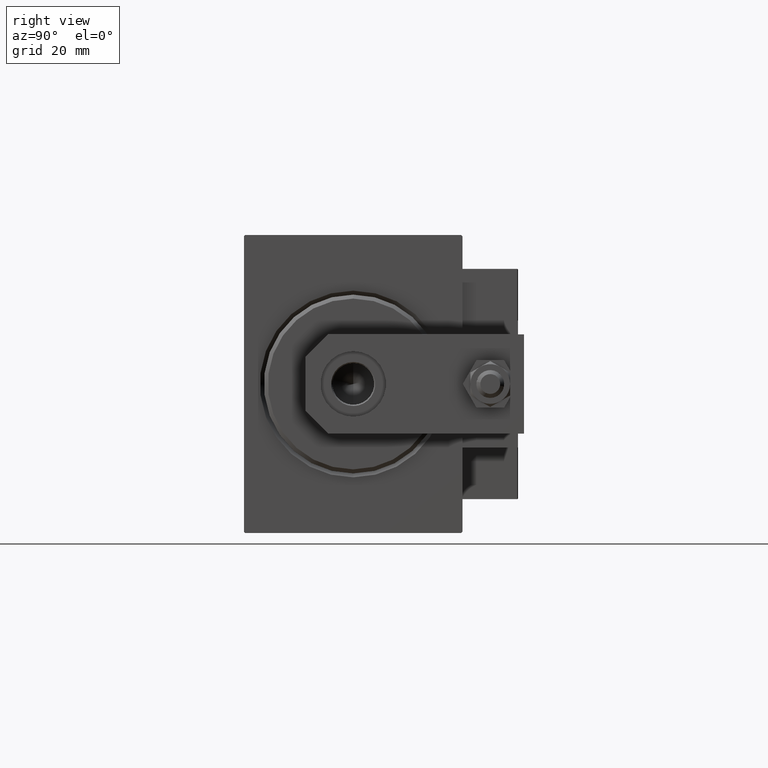
[diagram: clean part render]
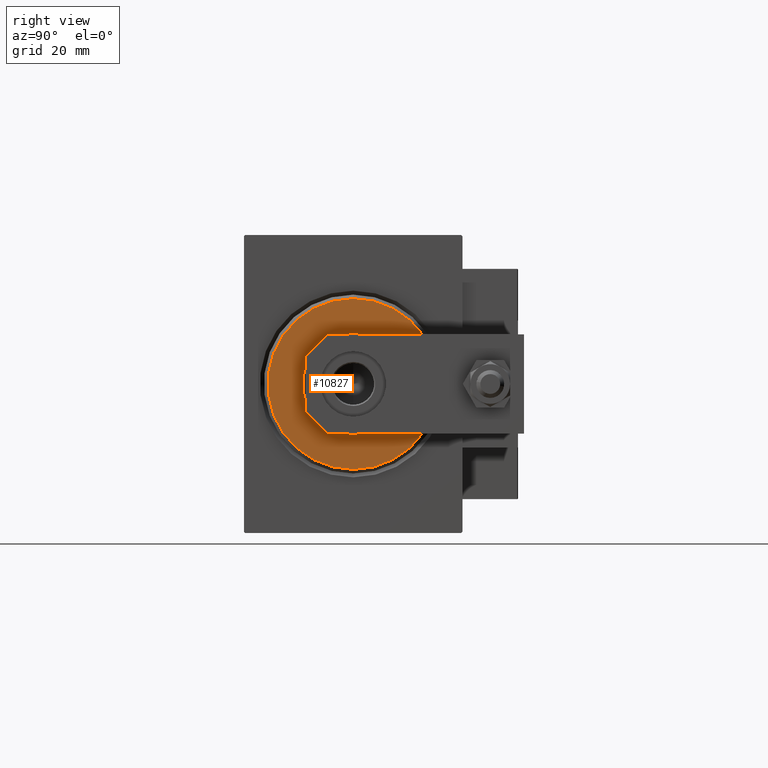
[diagram: same view with one face highlighted and labeled with its STEP entity id]
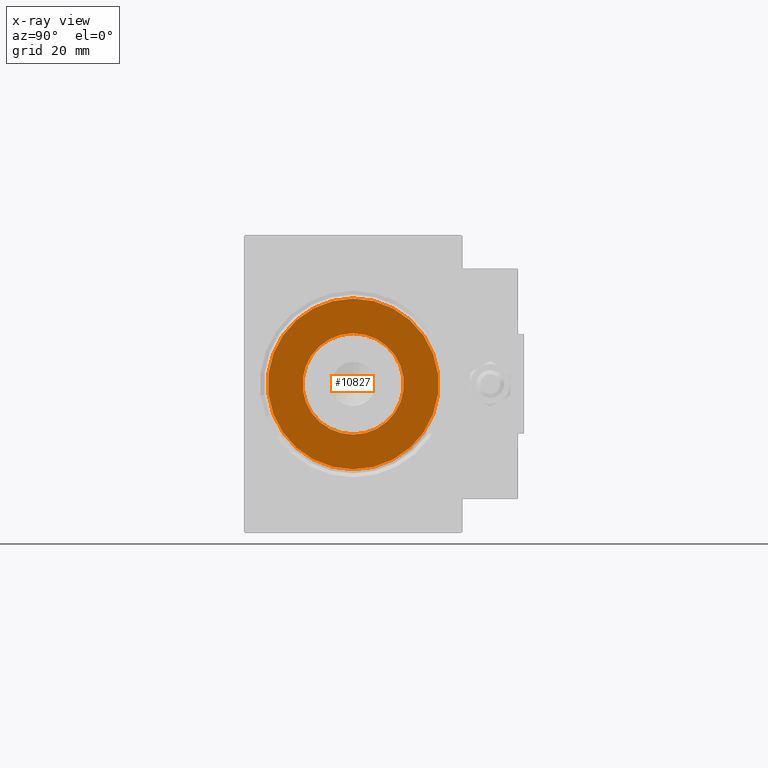
[diagram: x-ray of the same camera — body ghosted, the highlighted face saturated]
A machine part, right view. The second image highlights one B-rep face of the part: STEP entity #10827.
The next image is the same camera in x-ray: the body ghosted, the highlighted face saturated — about 0% of this face is hidden behind the body in this view.
In plain terms, the highlighted planar face has unit normal (1, 0, 0).
Its self-contained STEP definition (entity closure, byte-faithful):
#1328 = PLANE ( 'NONE',  #23044 ) ;
#3814 = CIRCLE ( 'NONE', #12603, 21.49999999999998579 ) ;
#4516 = VERTEX_POINT ( 'NONE', #33237 ) ;
#4544 = EDGE_LOOP ( 'NONE', ( #7912, #11023 ) ) ;
#7912 = ORIENTED_EDGE ( 'NONE', *, *, #17145, .T. ) ;
#8811 = FACE_BOUND ( 'NONE', #4544, .T. ) ;
#9484 = CIRCLE ( 'NONE', #37475, 21.49999999999998579 ) ;
#10827 = ADVANCED_FACE ( 'NONE', ( #12577, #8811 ), #1328, .T. ) ;
#11023 = ORIENTED_EDGE ( 'NONE', *, *, #18778, .T. ) ;
#12577 = FACE_OUTER_BOUND ( 'NONE', #24059, .T. ) ;
#12603 = AXIS2_PLACEMENT_3D ( 'NONE', #21866, #15097, #48430 ) ;
#14170 = CARTESIAN_POINT ( 'NONE',  ( 3.000000000000000000, 0.000000000000000000, 0.000000000000000000 ) ) ;
#15097 = DIRECTION ( 'NONE',  ( 1.000000000000000000, -0.000000000000000000, 0.000000000000000000 ) ) ;
#16816 = CARTESIAN_POINT ( 'NONE',  ( 3.000000000000000000, 0.000000000000000000, 0.000000000000000000 ) ) ;
#17145 = EDGE_CURVE ( 'NONE', #28013, #4516, #17400, .T. ) ;
#17400 = CIRCLE ( 'NONE', #25377, 12.75000000000000000 ) ;
#17722 = ORIENTED_EDGE ( 'NONE', *, *, #47356, .T. ) ;
#18778 = EDGE_CURVE ( 'NONE', #4516, #28013, #43823, .T. ) ;
#19575 = DIRECTION ( 'NONE',  ( 1.000000000000000000, -0.000000000000000000, 0.000000000000000000 ) ) ;
#19775 = CARTESIAN_POINT ( 'NONE',  ( 3.000000000000000000, 0.000000000000000000, 0.000000000000000000 ) ) ;
#20068 = DIRECTION ( 'NONE',  ( 0.000000000000000000, 0.000000000000000000, -1.000000000000000000 ) ) ;
#20120 = EDGE_CURVE ( 'NONE', #45596, #31722, #9484, .T. ) ;
#21866 = CARTESIAN_POINT ( 'NONE',  ( 3.000000000000000000, 0.000000000000000000, 0.000000000000000000 ) ) ;
#23044 = AXIS2_PLACEMENT_3D ( 'NONE', #16816, #19575, #20068 ) ;
#24059 = EDGE_LOOP ( 'NONE', ( #17722, #47774 ) ) ;
#25377 = AXIS2_PLACEMENT_3D ( 'NONE', #14170, #33448, #40970 ) ;
#26144 = CARTESIAN_POINT ( 'NONE',  ( 3.000000000000000000, 0.000000000000000000, 21.49999999999998579 ) ) ;
#26327 = DIRECTION ( 'NONE',  ( 1.000000000000000000, -0.000000000000000000, 0.000000000000000000 ) ) ;
#28013 = VERTEX_POINT ( 'NONE', #46440 ) ;
#31722 = VERTEX_POINT ( 'NONE', #26144 ) ;
#33237 = CARTESIAN_POINT ( 'NONE',  ( 3.000000000000000000, 1.561424668912874914E-15, -12.75000000000000000 ) ) ;
#33448 = DIRECTION ( 'NONE',  ( -1.000000000000000000, 0.000000000000000000, -0.000000000000000000 ) ) ;
#34556 = CARTESIAN_POINT ( 'NONE',  ( 3.000000000000000000, 0.000000000000000000, 0.000000000000000000 ) ) ;
#35074 = DIRECTION ( 'NONE',  ( 0.000000000000000000, 0.000000000000000000, -1.000000000000000000 ) ) ;
#37475 = AXIS2_PLACEMENT_3D ( 'NONE', #19775, #26327, #35074 ) ;
#37649 = CARTESIAN_POINT ( 'NONE',  ( 3.000000000000000000, 2.694222958124176415E-15, -21.49999999999998579 ) ) ;
#38319 = DIRECTION ( 'NONE',  ( -1.000000000000000000, 0.000000000000000000, -0.000000000000000000 ) ) ;
#40970 = DIRECTION ( 'NONE',  ( 0.000000000000000000, 0.000000000000000000, -1.000000000000000000 ) ) ;
#43823 = CIRCLE ( 'NONE', #47007, 12.75000000000000000 ) ;
#45596 = VERTEX_POINT ( 'NONE', #37649 ) ;
#46058 = DIRECTION ( 'NONE',  ( 0.000000000000000000, 0.000000000000000000, -1.000000000000000000 ) ) ;
#46440 = CARTESIAN_POINT ( 'NONE',  ( 3.000000000000000000, 0.000000000000000000, 12.75000000000000000 ) ) ;
#47007 = AXIS2_PLACEMENT_3D ( 'NONE', #34556, #38319, #46058 ) ;
#47356 = EDGE_CURVE ( 'NONE', #31722, #45596, #3814, .T. ) ;
#47774 = ORIENTED_EDGE ( 'NONE', *, *, #20120, .T. ) ;
#48430 = DIRECTION ( 'NONE',  ( 0.000000000000000000, 0.000000000000000000, -1.000000000000000000 ) ) ;